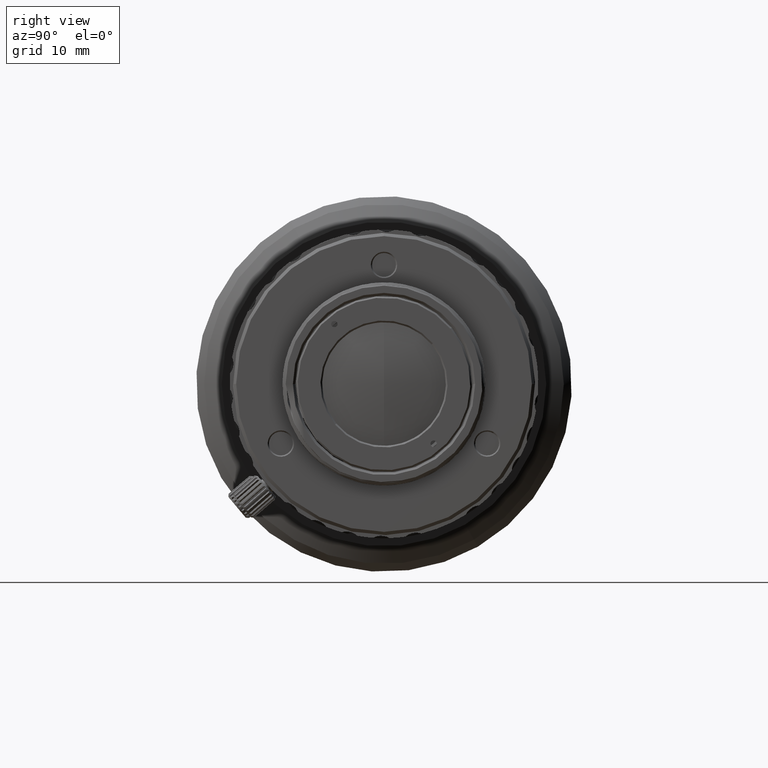
[diagram: clean part render]
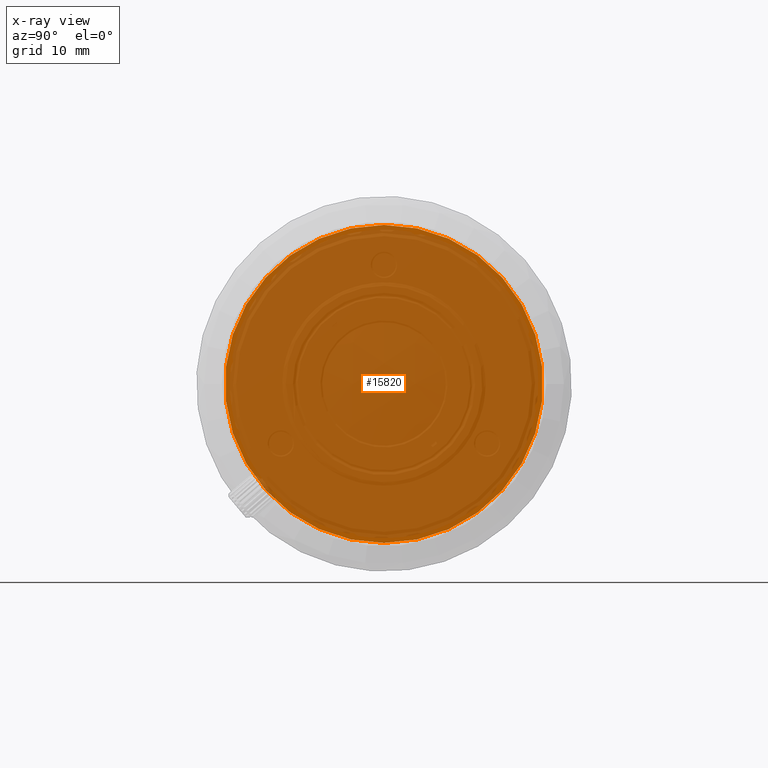
[diagram: x-ray — body ghosted, one internal face saturated and labeled with its STEP entity id]
A machine part, right view, then the same camera in x-ray: the body is ghosted and one INTERNAL B-rep face — a face not visible from any outside direction — is saturated and labeled: STEP entity #15820.
In plain terms, the highlighted planar face has unit normal (1, 0, 0).
Its self-contained STEP definition (entity closure, byte-faithful):
#2248 = CARTESIAN_POINT ( 'NONE',  ( -42.75999999887999792, 8.178205398440279267E-15, -6.384048015418199102E-14 ) ) ;
#3595 = DIRECTION ( 'NONE',  ( 0.000000000000000000, 0.5000000000000169864, -0.8660254037844288266 ) ) ;
#5103 = EDGE_LOOP ( 'NONE', ( #16503, #41586 ) ) ;
#9042 = VERTEX_POINT ( 'NONE', #36181 ) ;
#13468 = DIRECTION ( 'NONE',  ( 1.000000000000000000, 0.000000000000000000, 0.000000000000000000 ) ) ;
#13747 = CIRCLE ( 'NONE', #48344, 19.90000000267000146 ) ;
#15820 = ADVANCED_FACE ( 'NONE', ( #30929 ), #30609, .T. ) ;
#16503 = ORIENTED_EDGE ( 'NONE', *, *, #36634, .T. ) ;
#17089 = AXIS2_PLACEMENT_3D ( 'NONE', #2248, #31859, #46193 ) ;
#18301 = CARTESIAN_POINT ( 'NONE',  ( -42.75999999887999792, 5.741158267810065238E-15, -19.90000000267006186 ) ) ;
#28860 = CARTESIAN_POINT ( 'NONE',  ( -42.75999999887999792, 8.178205398440279267E-15, -6.384048015418199102E-14 ) ) ;
#29167 = DIRECTION ( 'NONE',  ( 1.000000000000000000, 0.000000000000000000, 0.000000000000000000 ) ) ;
#30609 = PLANE ( 'NONE',  #17089 ) ;
#30929 = FACE_OUTER_BOUND ( 'NONE', #5103, .T. ) ;
#31859 = DIRECTION ( 'NONE',  ( 1.000000000000000000, 0.000000000000000000, 0.000000000000000000 ) ) ;
#32034 = CIRCLE ( 'NONE', #53394, 19.90000000267000146 ) ;
#36181 = CARTESIAN_POINT ( 'NONE',  ( -42.75999999887999792, 8.178205398440279267E-15, 19.90000000266993752 ) ) ;
#36634 = EDGE_CURVE ( 'NONE', #9042, #59883, #32034, .T. ) ;
#39324 = DIRECTION ( 'NONE',  ( 0.000000000000000000, 0.5000000000000169864, -0.8660254037844288266 ) ) ;
#41311 = EDGE_CURVE ( 'NONE', #59883, #9042, #13747, .T. ) ;
#41586 = ORIENTED_EDGE ( 'NONE', *, *, #41311, .T. ) ;
#46193 = DIRECTION ( 'NONE',  ( 0.000000000000000000, 1.000000000000000000, 0.000000000000000000 ) ) ;
#48344 = AXIS2_PLACEMENT_3D ( 'NONE', #61262, #13468, #3595 ) ;
#53394 = AXIS2_PLACEMENT_3D ( 'NONE', #28860, #29167, #39324 ) ;
#59883 = VERTEX_POINT ( 'NONE', #18301 ) ;
#61262 = CARTESIAN_POINT ( 'NONE',  ( -42.75999999887999792, 8.178205398440279267E-15, -6.384048015418199102E-14 ) ) ;